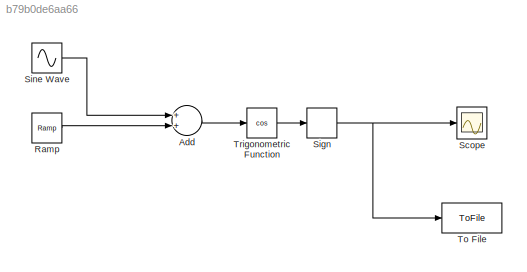
MODEL slx_b79b0de6aa66
KIND model
CONFIG AbsTol = auto
CONFIG EnableMultiTasking = off
CONFIG FixedStep = 5e-8
CONFIG MaxStep = auto
CONFIG MinStep = auto
CONFIG RelTol = 1e-3
CONFIG SampleTimeConstraint = Unconstrained
CONFIG Solver = FixedStepAuto
CONFIG SolverName = FixedStepAuto
CONFIG StartTime = 0.0
CONFIG StopTime = 0.1
BLOCK [Sum] Add
  InputSameDT = off
  OutDataTypeStr = Inherit: Inherit via internal rule
  Ports = [2, 1]
  SaturateOnIntegerOverflow = off
BLOCK [Reference] Ramp  REF=simulink/Sources/Ramp
  Ports = [0, 1]
  SourceBlock = simulink/Sources/Ramp
  SourceProductBaseCode = SL
  SourceProductName = Simulink
  SourceType = Ramp
BLOCK [Scope] Scope
  Floating = off
  NumInputPorts = 1
  Ports = [1]
  ScopeSpecificationString = Simulink.scopes.TimeScopeBlockCfg('CurrentConfiguration', extmgr.ConfigurationSet(extmgr.Configuration('Core','General UI',true),extmgr.Configuration('Core','Source UI',true),extmgr.Configuration('Sources','WiredSimulink',true),extmgr.Configuration('Visuals','Time Domain',true,'SerializedDisplays',{struct('MinYLimReal','-2.2223','MaxYLimReal','1.49998','YLabelReal','','MinYLimMag','0.00000','MaxYL...<+1753ch>
BLOCK [Signum] Sign
BLOCK [Sin] Sine Wave
  Amplitude = 0.2
  Frequency = 2*pi*(1e4)
  Ports = [0, 1]
  SampleTime = 0
BLOCK [ToFile] To File
  Filename = q13.mat
  Ports = [1]
  SampleTime = 5e-8
  SaveFormat = Timeseries
BLOCK [Trigonometry] Trigonometric Function
  Operator = cos
  Ports = [1, 1]
LINE Add:1 -> Trigonometric Function:1
LINE Ramp:1 -> Add:2
NET Sign:1 -> Scope:1, To File:1
LINE Sine Wave:1 -> Add:1
LINE Trigonometric Function:1 -> Sign:1
note: NET lines group one-source signal fan-out (src -> all destinations, sorted); 1:1 wires keep LINE
